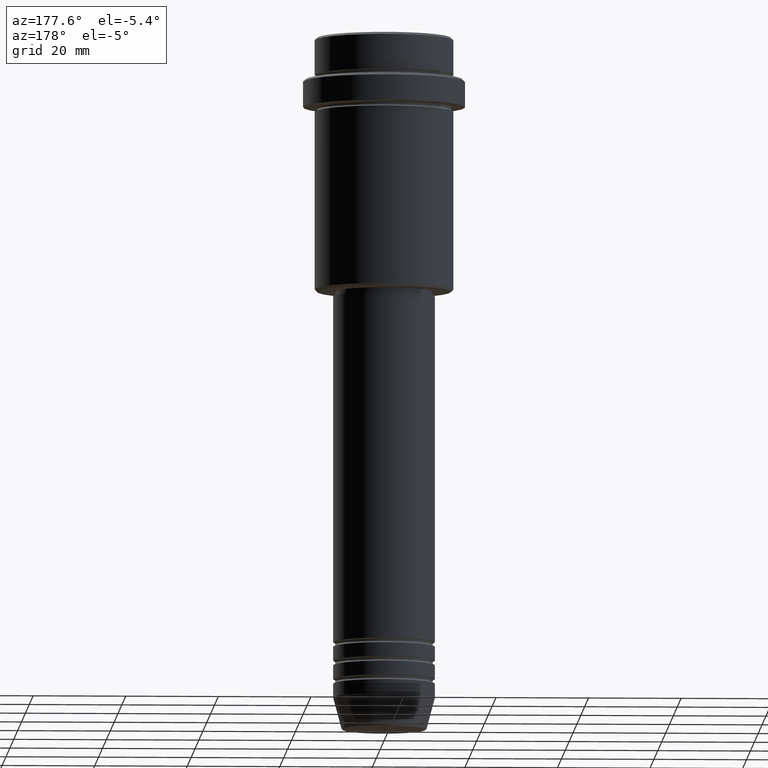
[diagram: clean part render]
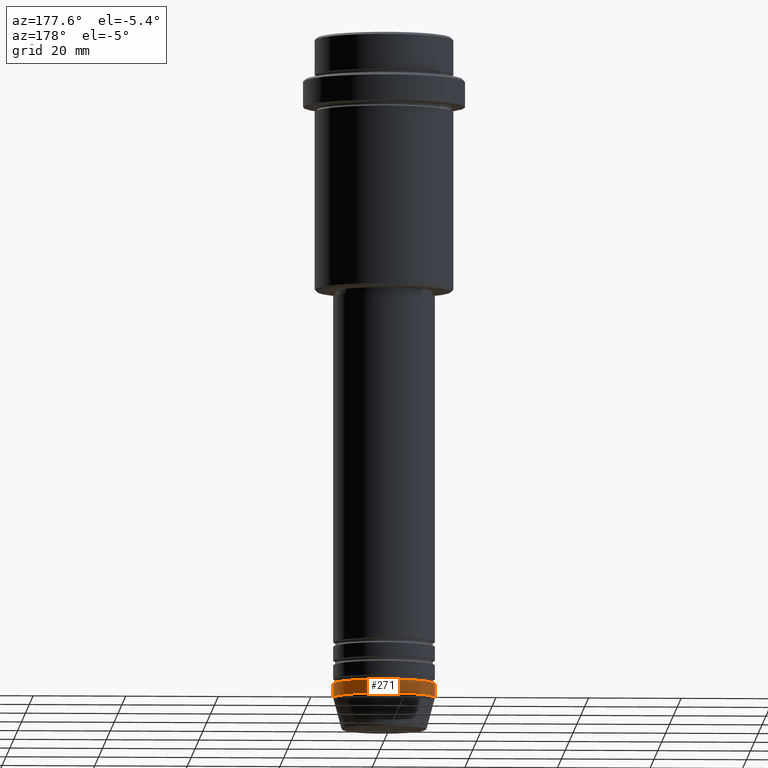
[diagram: same view with one face highlighted and labeled with its STEP entity id]
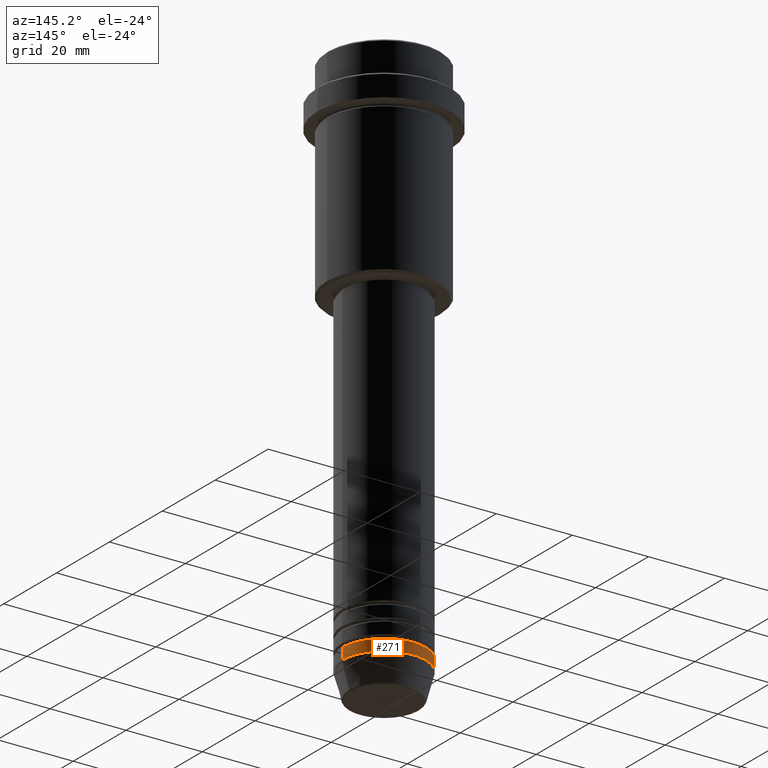
[diagram: same view with one face highlighted and labeled with its STEP entity id]
A machine part, auxiliary view. The second image highlights one B-rep face of the part: STEP entity #271.
A second angle (auxiliary view) of the same face is appended — the face is thin or edge-on in the first view.
In plain terms, the highlighted cylindrical surface (partial cylindrical patch) has radius 11 mm, axis along (-0, -0, 1).
Its self-contained STEP definition (entity closure, byte-faithful):
#26 = CARTESIAN_POINT ( 'NONE',  ( -11.00000000000000000, 1.347111479062088405E-15, -139.9999999999999716 ) ) ;
#32 = ORIENTED_EDGE ( 'NONE', *, *, #748, .T. ) ;
#92 = EDGE_CURVE ( 'NONE', #677, #1389, #606, .T. ) ;
#271 = ADVANCED_FACE ( 'NONE', ( #525 ), #1386, .T. ) ;
#297 = DIRECTION ( 'NONE',  ( 1.000000000000000000, 0.000000000000000000, 0.000000000000000000 ) ) ;
#310 = DIRECTION ( 'NONE',  ( -0.000000000000000000, -0.000000000000000000, 1.000000000000000000 ) ) ;
#312 = DIRECTION ( 'NONE',  ( -0.000000000000000000, -0.000000000000000000, 1.000000000000000000 ) ) ;
#317 = VERTEX_POINT ( 'NONE', #399 ) ;
#399 = CARTESIAN_POINT ( 'NONE',  ( 11.00000000000000000, 0.000000000000000000, -139.9999999999999716 ) ) ;
#438 = DIRECTION ( 'NONE',  ( 1.000000000000000000, 0.000000000000000000, 0.000000000000000000 ) ) ;
#489 = ORIENTED_EDGE ( 'NONE', *, *, #1206, .F. ) ;
#525 = FACE_OUTER_BOUND ( 'NONE', #1220, .T. ) ;
#549 = CIRCLE ( 'NONE', #1214, 11.00000000000000000 ) ;
#590 = AXIS2_PLACEMENT_3D ( 'NONE', #1086, #848, #626 ) ;
#606 = LINE ( 'NONE', #916, #1188 ) ;
#621 = AXIS2_PLACEMENT_3D ( 'NONE', #782, #1124, #438 ) ;
#626 = DIRECTION ( 'NONE',  ( 1.000000000000000000, 0.000000000000000000, 0.000000000000000000 ) ) ;
#628 = CARTESIAN_POINT ( 'NONE',  ( 11.00000000000000000, 0.000000000000000000, 0.000000000000000000 ) ) ;
#652 = CARTESIAN_POINT ( 'NONE',  ( -11.00000000000000000, 1.347111479062088405E-15, -143.0000000000000000 ) ) ;
#677 = VERTEX_POINT ( 'NONE', #652 ) ;
#682 = DIRECTION ( 'NONE',  ( -0.000000000000000000, -0.000000000000000000, 1.000000000000000000 ) ) ;
#738 = CARTESIAN_POINT ( 'NONE',  ( 0.000000000000000000, 0.000000000000000000, -143.0000000000000000 ) ) ;
#748 = EDGE_CURVE ( 'NONE', #1182, #677, #549, .T. ) ;
#782 = CARTESIAN_POINT ( 'NONE',  ( 0.000000000000000000, 0.000000000000000000, -139.9999999999999716 ) ) ;
#848 = DIRECTION ( 'NONE',  ( -0.000000000000000000, -0.000000000000000000, 1.000000000000000000 ) ) ;
#916 = CARTESIAN_POINT ( 'NONE',  ( -11.00000000000000000, 1.347111479062088405E-15, 0.000000000000000000 ) ) ;
#940 = CIRCLE ( 'NONE', #621, 11.00000000000000000 ) ;
#967 = VECTOR ( 'NONE', #310, 1000.000000000000000 ) ;
#1086 = CARTESIAN_POINT ( 'NONE',  ( 0.000000000000000000, 0.000000000000000000, 0.000000000000000000 ) ) ;
#1124 = DIRECTION ( 'NONE',  ( -0.000000000000000000, -0.000000000000000000, 1.000000000000000000 ) ) ;
#1182 = VERTEX_POINT ( 'NONE', #1297 ) ;
#1188 = VECTOR ( 'NONE', #682, 1000.000000000000000 ) ;
#1201 = ORIENTED_EDGE ( 'NONE', *, *, #92, .T. ) ;
#1206 = EDGE_CURVE ( 'NONE', #1182, #317, #1281, .T. ) ;
#1214 = AXIS2_PLACEMENT_3D ( 'NONE', #738, #312, #297 ) ;
#1220 = EDGE_LOOP ( 'NONE', ( #32, #1201, #1321, #489 ) ) ;
#1281 = LINE ( 'NONE', #628, #967 ) ;
#1297 = CARTESIAN_POINT ( 'NONE',  ( 11.00000000000000000, 0.000000000000000000, -143.0000000000000000 ) ) ;
#1321 = ORIENTED_EDGE ( 'NONE', *, *, #1342, .F. ) ;
#1342 = EDGE_CURVE ( 'NONE', #317, #1389, #940, .T. ) ;
#1386 = CYLINDRICAL_SURFACE ( 'NONE', #590, 11.00000000000000000 ) ;
#1389 = VERTEX_POINT ( 'NONE', #26 ) ;